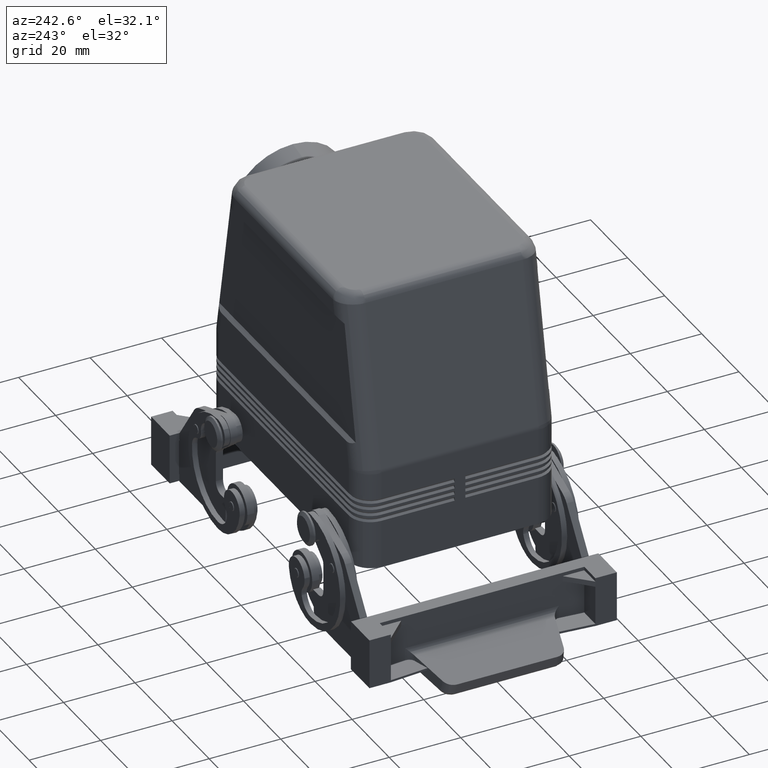
[diagram: clean part render]
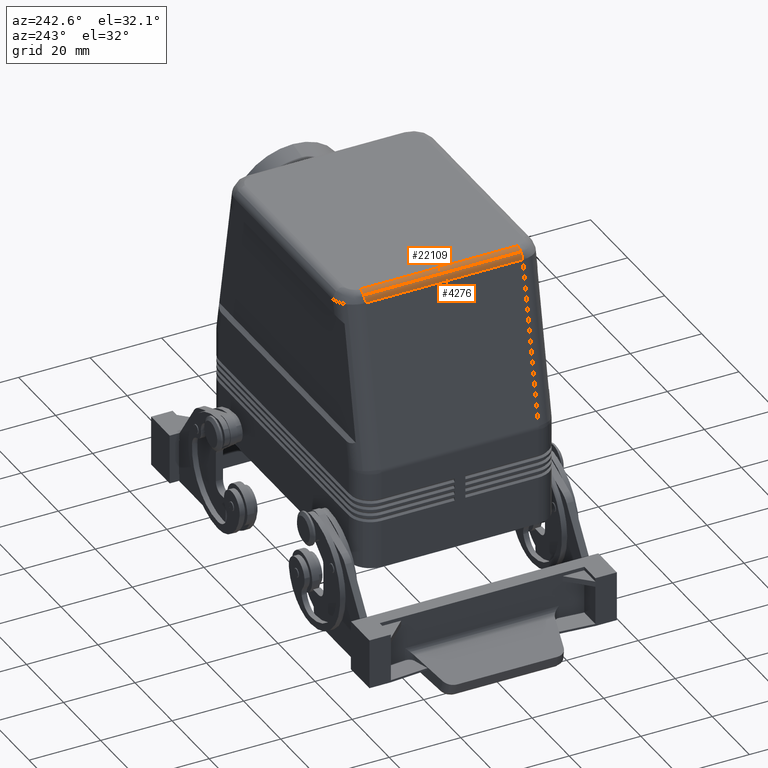
[diagram: same view with one multi-face feature highlighted, each face labeled with its STEP entity id]
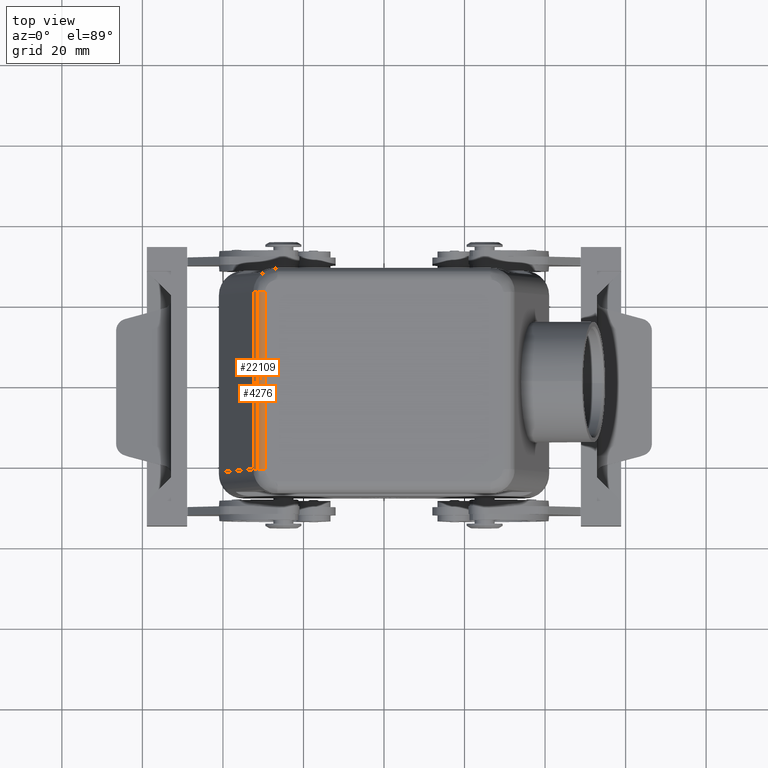
[diagram: same view with one multi-face feature highlighted, each face labeled with its STEP entity id]
A machine part, auxiliary view. The highlighted faces form ONE feature: a constant-radius fillet chain: 2 tangent blend faces with common blend radius 3 mm. The faces share edges in the B-rep.
A second angle (top view) of the same feature is appended — it is thin or edge-on in the first view.
Their STEP definitions:
[1] entity #4276 (Cylinder):
#4235=CARTESIAN_POINT('',(-29.519960992168830,0.0,72.0));
#4236=DIRECTION('',(0.0,-1.0,0.0));
#4237=DIRECTION('',(-0.637152936590637,0.0,0.770737397168405));
#4238=AXIS2_PLACEMENT_3D('',#4235,#4236,#4237);
#4239=CYLINDRICAL_SURFACE('',#4238,3.000000000000000);
#4240=CARTESIAN_POINT('',(-31.431419801940748,22.000000000000007,74.312212191505211));
#4241=VERTEX_POINT('',#4240);
#4242=CARTESIAN_POINT('',(-31.431419801940748,-21.999999999999996,74.312212191505211));
#4243=VERTEX_POINT('',#4242);
#4244=CARTESIAN_POINT('',(-31.431419801940748,22.000000000000007,74.312212191505211));
#4245=DIRECTION('',(0.0,-1.0,0.0));
#4246=VECTOR('',#4245,44.0);
#4247=LINE('',#4244,#4246);
#4248=EDGE_CURVE('',#4241,#4243,#4247,.T.);
#4249=ORIENTED_EDGE('',*,*,#4248,.F.);
#4250=CARTESIAN_POINT('',(-32.466426567845275,22.000000000000007,72.564216812363583));
#4251=VERTEX_POINT('',#4250);
#4252=CARTESIAN_POINT('',(-29.519960992168841,22.000000000000007,72.0));
#4253=DIRECTION('',(0.0,1.0,0.0));
#4254=DIRECTION('',(-0.982155191892146,0.0,0.188072270787858));
#4255=AXIS2_PLACEMENT_3D('',#4252,#4253,#4254);
#4256=CIRCLE('',#4255,2.999999999999999);
#4257=EDGE_CURVE('',#4251,#4241,#4256,.T.);
#4258=ORIENTED_EDGE('',*,*,#4257,.F.);
#4259=CARTESIAN_POINT('',(-32.466426567845275,-21.999999999999996,72.564216812363583));
#4260=VERTEX_POINT('',#4259);
#4261=CARTESIAN_POINT('',(-32.466426567845275,22.000000000000007,72.564216812363583));
#4262=DIRECTION('',(0.0,-1.0,0.0));
#4263=VECTOR('',#4262,44.0);
#4264=LINE('',#4261,#4263);
#4265=EDGE_CURVE('',#4251,#4260,#4264,.T.);
#4266=ORIENTED_EDGE('',*,*,#4265,.T.);
#4267=CARTESIAN_POINT('',(-29.519960992168841,-21.999999999999996,72.0));
#4268=DIRECTION('',(0.0,-1.0,0.0));
#4269=DIRECTION('',(0.0,0.0,1.0));
#4270=AXIS2_PLACEMENT_3D('',#4267,#4268,#4269);
#4271=CIRCLE('',#4270,2.999999999999998);
#4272=EDGE_CURVE('',#4243,#4260,#4271,.T.);
#4273=ORIENTED_EDGE('',*,*,#4272,.F.);
#4274=EDGE_LOOP('',(#4249,#4258,#4266,#4273));
#4275=FACE_OUTER_BOUND('',#4274,.T.);
#4276=ADVANCED_FACE('',(#4275),#4239,.T.);
[2] entity #22109 (Cylinder):
#4240=CARTESIAN_POINT('',(-31.431419801940748,22.000000000000007,74.312212191505211));
#4241=VERTEX_POINT('',#4240);
#4242=CARTESIAN_POINT('',(-31.431419801940748,-21.999999999999996,74.312212191505211));
#4243=VERTEX_POINT('',#4242);
#4244=CARTESIAN_POINT('',(-31.431419801940748,22.000000000000007,74.312212191505211));
#4245=DIRECTION('',(0.0,-1.0,0.0));
#4246=VECTOR('',#4245,44.0);
#4247=LINE('',#4244,#4246);
#4248=EDGE_CURVE('',#4241,#4243,#4247,.T.);
#21561=CARTESIAN_POINT('',(-29.519960992168841,22.000000000000007,75.0));
#21562=VERTEX_POINT('',#21561);
#21563=CARTESIAN_POINT('',(-29.519960992168841,22.000000000000007,72.0));
#21564=DIRECTION('',(0.0,1.0,0.0));
#21565=DIRECTION('',(-0.982155191892146,0.0,0.188072270787858));
#21566=AXIS2_PLACEMENT_3D('',#21563,#21564,#21565);
#21567=CIRCLE('',#21566,2.999999999999999);
#21568=EDGE_CURVE('',#4241,#21562,#21567,.T.);
#21691=CARTESIAN_POINT('',(-29.519960992168841,-21.999999999999996,75.0));
#21692=VERTEX_POINT('',#21691);
#21693=CARTESIAN_POINT('',(-29.519960992168841,-21.999999999999996,75.0));
#21694=DIRECTION('',(0.0,1.0,0.0));
#21695=VECTOR('',#21694,44.0);
#21696=LINE('',#21693,#21695);
#21697=EDGE_CURVE('',#21692,#21562,#21696,.T.);
#21795=CARTESIAN_POINT('',(-29.519960992168841,-21.999999999999996,72.0));
#21796=DIRECTION('',(0.0,-1.0,0.0));
#21797=DIRECTION('',(0.0,0.0,1.0));
#21798=AXIS2_PLACEMENT_3D('',#21795,#21796,#21797);
#21799=CIRCLE('',#21798,2.999999999999998);
#21800=EDGE_CURVE('',#21692,#4243,#21799,.T.);
#22098=CARTESIAN_POINT('',(-29.519960992168830,0.0,72.0));
#22099=DIRECTION('',(0.0,-1.0,0.0));
#22100=DIRECTION('',(-0.637152936590637,0.0,0.770737397168405));
#22101=AXIS2_PLACEMENT_3D('',#22098,#22099,#22100);
#22102=CYLINDRICAL_SURFACE('',#22101,3.000000000000000);
#22103=ORIENTED_EDGE('',*,*,#4248,.T.);
#22104=ORIENTED_EDGE('',*,*,#21800,.F.);
#22105=ORIENTED_EDGE('',*,*,#21697,.T.);
#22106=ORIENTED_EDGE('',*,*,#21568,.F.);
#22107=EDGE_LOOP('',(#22103,#22104,#22105,#22106));
#22108=FACE_OUTER_BOUND('',#22107,.T.);
#22109=ADVANCED_FACE('',(#22108),#22102,.T.);